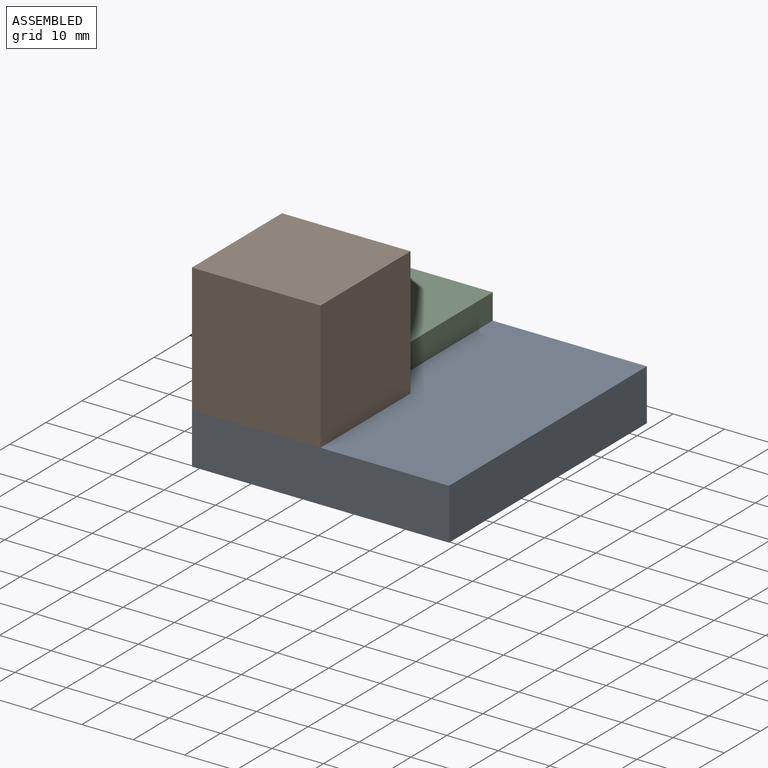
[diagram: assembled view]
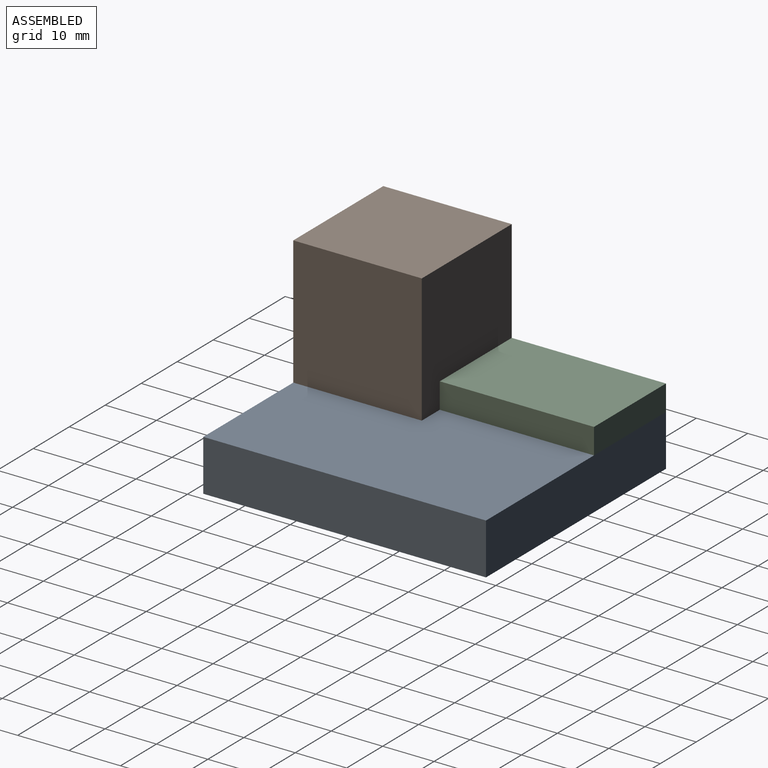
[diagram: assembled view, second angle]
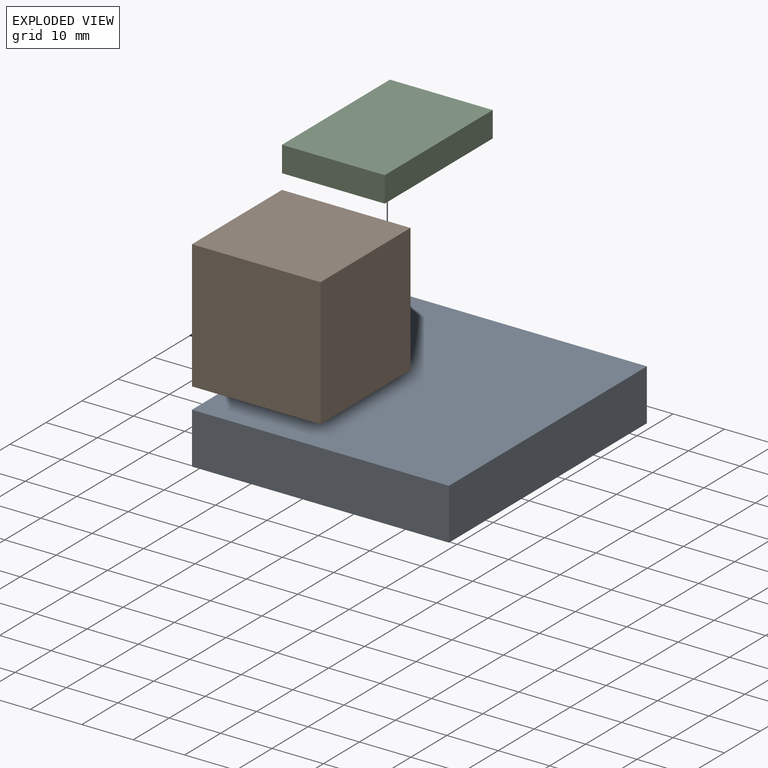
[diagram: exploded view]
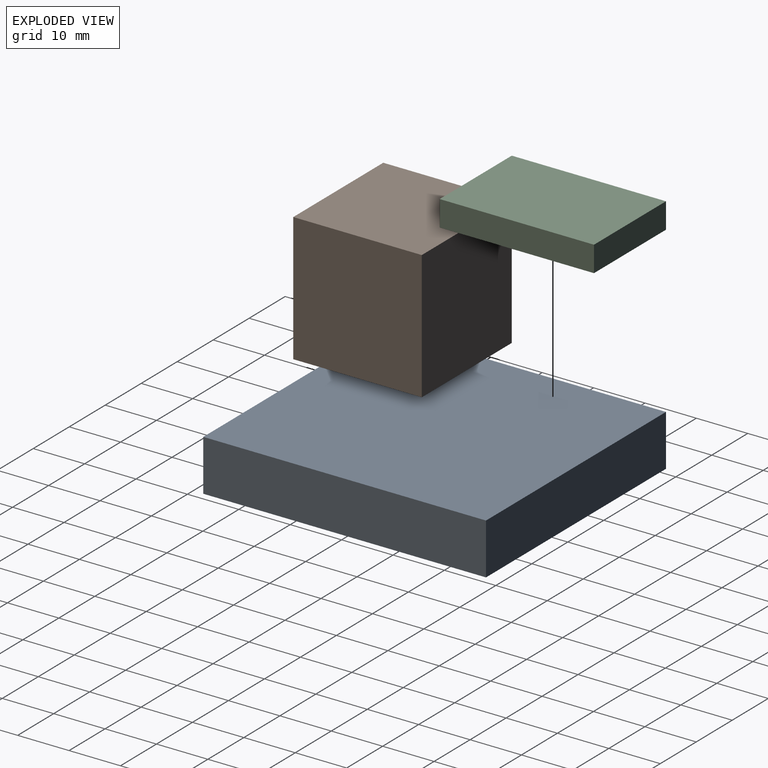
[diagram: exploded view, second angle]
ASSEMBLY  parts=3 mates=2
PART A: 6 faces, bbox 50x55x10 mm
  f0: plane 50x10mm, normal (0,1,0), area 500mm2, adj f1,f3,f4,f5
  f1: plane 55x10mm, normal (-1,0,0), area 550mm2, adj f0,f2,f4,f5
  f2: plane 50x10mm, normal (0,-1,0), area 500mm2, adj f1,f3,f4,f5
  f3: plane 55x10mm, normal (1,0,0), area 550mm2, adj f0,f2,f4,f5
  f4: plane 55x50mm, normal (0,0,1), area 2750mm2, adj f0,f1,f2,f3
  f5: plane 55x50mm, normal (0,0,-1), area 2750mm2, adj f0,f1,f2,f3
PART B: 6 faces, bbox 25x25x25 mm
  f0: plane 25x25mm, normal (0,1,0), area 625mm2, adj f1,f3,f4,f5
  f1: plane 25x25mm, normal (-1,0,0), area 625mm2, adj f0,f2,f4,f5
  f2: plane 25x25mm, normal (0,-1,0), area 625mm2, adj f1,f3,f4,f5
  f3: plane 25x25mm, normal (1,0,0), area 625mm2, adj f0,f2,f4,f5
  f4: plane 25x25mm, normal (0,0,1), area 625mm2, adj f0,f1,f2,f3
  f5: plane 25x25mm, normal (0,0,-1), area 625mm2, adj f0,f1,f2,f3
PART C: 6 faces, bbox 20x30x5 mm
  f0: plane 20x5mm, normal (0,1,0), area 100mm2, adj f1,f3,f4,f5
  f1: plane 30x5mm, normal (-1,0,0), area 150mm2, adj f0,f2,f4,f5
  f2: plane 20x5mm, normal (0,-1,0), area 100mm2, adj f1,f3,f4,f5
  f3: plane 30x5mm, normal (1,0,0), area 150mm2, adj f0,f2,f4,f5
  f4: plane 30x20mm, normal (0,0,1), area 600mm2, adj f0,f1,f2,f3
  f5: plane 30x20mm, normal (0,0,-1), area 600mm2, adj f0,f1,f2,f3
PLACE A t=(1.53,-20.94,2.18)mm
PLACE B t=(-9.85,-14.81,12.18)mm
PLACE C t=(-9.56,0.26,12.18)mm
MATE fastened B.f5 <-> A.f4  axis (0,0,-1) through (-15.12,-11.73,12.18)mm
MATE fastened C.f5 <-> A.f4  axis (0,0,-1) through (-17.62,15.77,12.18)mm
